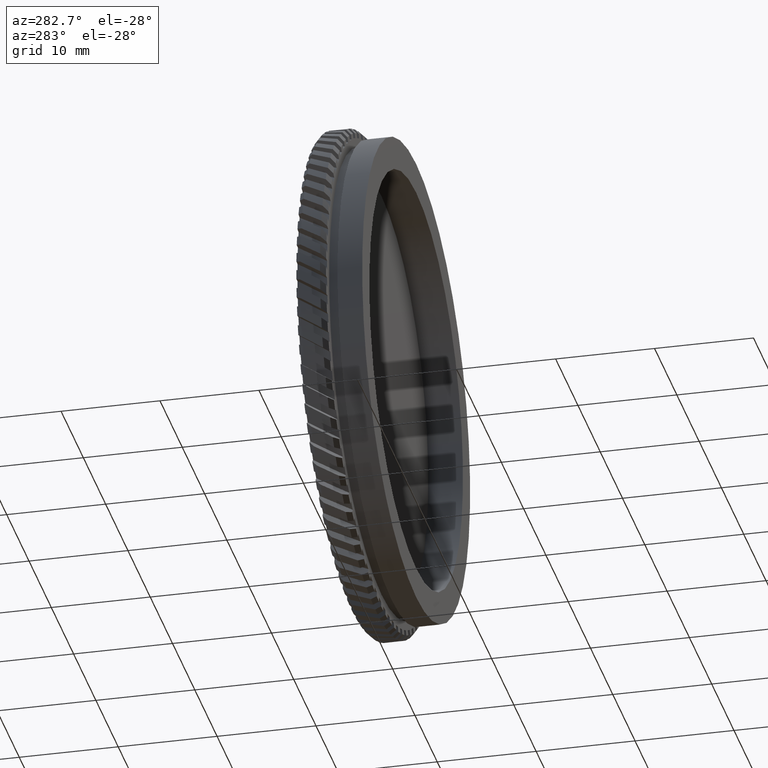
[diagram: clean part render]
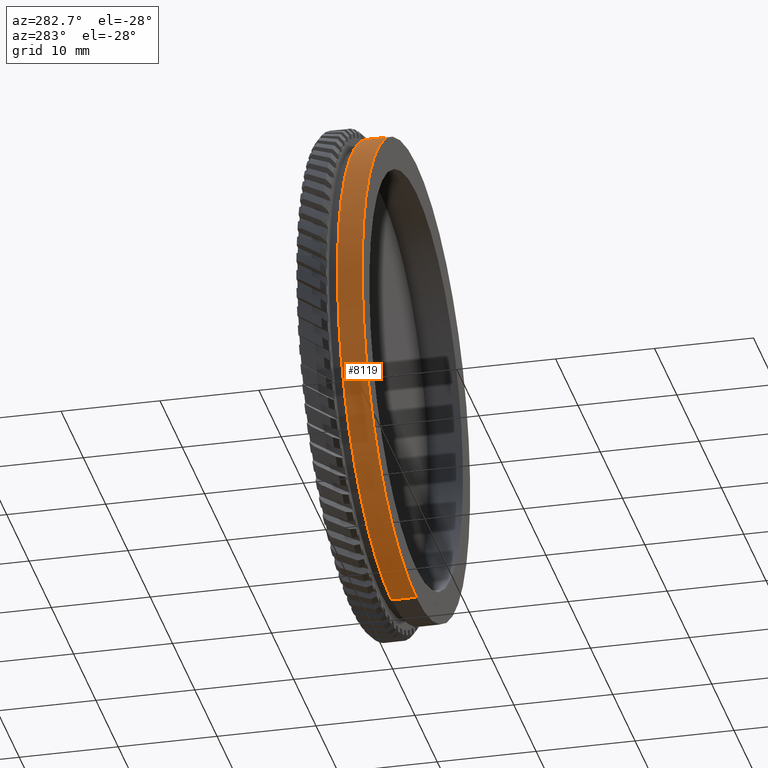
[diagram: same view with one face highlighted and labeled with its STEP entity id]
A machine part, auxiliary view. The second image highlights one B-rep face of the part: STEP entity #8119.
In plain terms, the highlighted cylindrical surface (partial cylindrical patch) has radius 24.2 mm, axis along (-0, 1, -0).
Its self-contained STEP definition (entity closure, byte-faithful):
#123 = VERTEX_POINT ( 'NONE', #11528 ) ;
#283 = CARTESIAN_POINT ( 'NONE',  ( 0.0000000000000000000, 17.87125740523061500, 0.0000000000000000000 ) ) ;
#955 = EDGE_CURVE ( 'NONE', #1331, #2355, #2946, .T. ) ;
#1263 = ORIENTED_EDGE ( 'NONE', *, *, #19774, .F. ) ;
#1331 = VERTEX_POINT ( 'NONE', #8049 ) ;
#2019 = VECTOR ( 'NONE', #12520, 1000.000000000000000 ) ;
#2081 = AXIS2_PLACEMENT_3D ( 'NONE', #6549, #12713, #12789 ) ;
#2355 = VERTEX_POINT ( 'NONE', #19705 ) ;
#2798 = VECTOR ( 'NONE', #17111, 1000.000000000000000 ) ;
#2946 = CIRCLE ( 'NONE', #2081, 24.20000000000000600 ) ;
#3197 = DIRECTION ( 'NONE',  ( -0.0000000000000000000, 1.000000000000000000, -0.0000000000000000000 ) ) ;
#3334 = DIRECTION ( 'NONE',  ( 0.0000000000000000000, 0.0000000000000000000, 1.000000000000000000 ) ) ;
#3718 = EDGE_CURVE ( 'NONE', #123, #6920, #15998, .T. ) ;
#4499 = AXIS2_PLACEMENT_3D ( 'NONE', #18798, #3197, #3334 ) ;
#6549 = CARTESIAN_POINT ( 'NONE',  ( 0.0000000000000000000, 15.37125740523061900, 0.0000000000000000000 ) ) ;
#6920 = VERTEX_POINT ( 'NONE', #7997 ) ;
#7997 = CARTESIAN_POINT ( 'NONE',  ( 0.0000000000000000000, 17.87125740523061500, 24.20000000000000600 ) ) ;
#8049 = CARTESIAN_POINT ( 'NONE',  ( 2.963645253936595400E-015, 15.37125740523061900, -24.20000000000000600 ) ) ;
#8119 = ADVANCED_FACE ( 'NONE', ( #14324 ), #14816, .T. ) ;
#9632 = AXIS2_PLACEMENT_3D ( 'NONE', #283, #12675, #12755 ) ;
#11528 = CARTESIAN_POINT ( 'NONE',  ( 2.963645253936595400E-015, 17.87125740523061500, -24.20000000000000600 ) ) ;
#11669 = ORIENTED_EDGE ( 'NONE', *, *, #3718, .F. ) ;
#11737 = ORIENTED_EDGE ( 'NONE', *, *, #18792, .T. ) ;
#12520 = DIRECTION ( 'NONE',  ( -0.0000000000000000000, 1.000000000000000000, -0.0000000000000000000 ) ) ;
#12675 = DIRECTION ( 'NONE',  ( -0.0000000000000000000, 1.000000000000000000, -0.0000000000000000000 ) ) ;
#12713 = DIRECTION ( 'NONE',  ( -0.0000000000000000000, 1.000000000000000000, -0.0000000000000000000 ) ) ;
#12755 = DIRECTION ( 'NONE',  ( 0.0000000000000000000, 0.0000000000000000000, 1.000000000000000000 ) ) ;
#12789 = DIRECTION ( 'NONE',  ( 0.0000000000000000000, 0.0000000000000000000, 1.000000000000000000 ) ) ;
#14274 = EDGE_LOOP ( 'NONE', ( #1263, #19047, #11737, #11669 ) ) ;
#14324 = FACE_OUTER_BOUND ( 'NONE', #14274, .T. ) ;
#14816 = CYLINDRICAL_SURFACE ( 'NONE', #4499, 24.20000000000000600 ) ;
#15998 = CIRCLE ( 'NONE', #9632, 24.20000000000000600 ) ;
#17111 = DIRECTION ( 'NONE',  ( -0.0000000000000000000, 1.000000000000000000, -0.0000000000000000000 ) ) ;
#17133 = CARTESIAN_POINT ( 'NONE',  ( 2.963645253936595400E-015, 66.62876213592232900, -24.20000000000000600 ) ) ;
#18129 = LINE ( 'NONE', #18787, #2798 ) ;
#18787 = CARTESIAN_POINT ( 'NONE',  ( 0.0000000000000000000, 66.62876213592232900, 24.20000000000000600 ) ) ;
#18792 = EDGE_CURVE ( 'NONE', #2355, #6920, #18129, .T. ) ;
#18798 = CARTESIAN_POINT ( 'NONE',  ( 0.0000000000000000000, 66.62876213592232900, 0.0000000000000000000 ) ) ;
#19047 = ORIENTED_EDGE ( 'NONE', *, *, #955, .T. ) ;
#19705 = CARTESIAN_POINT ( 'NONE',  ( 0.0000000000000000000, 15.37125740523061900, 24.20000000000000600 ) ) ;
#19774 = EDGE_CURVE ( 'NONE', #1331, #123, #20032, .T. ) ;
#20032 = LINE ( 'NONE', #17133, #2019 ) ;